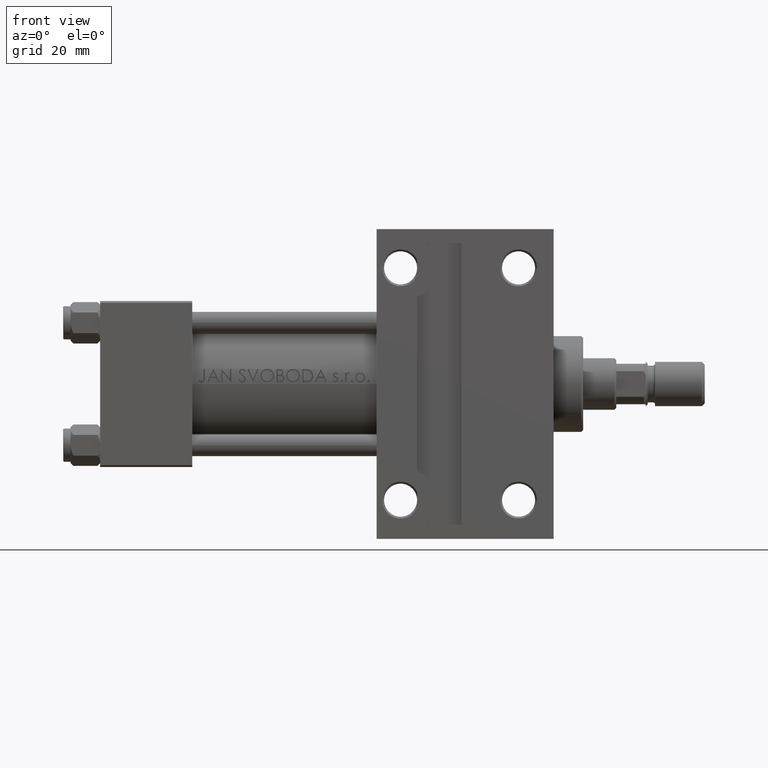
[diagram: clean part render]
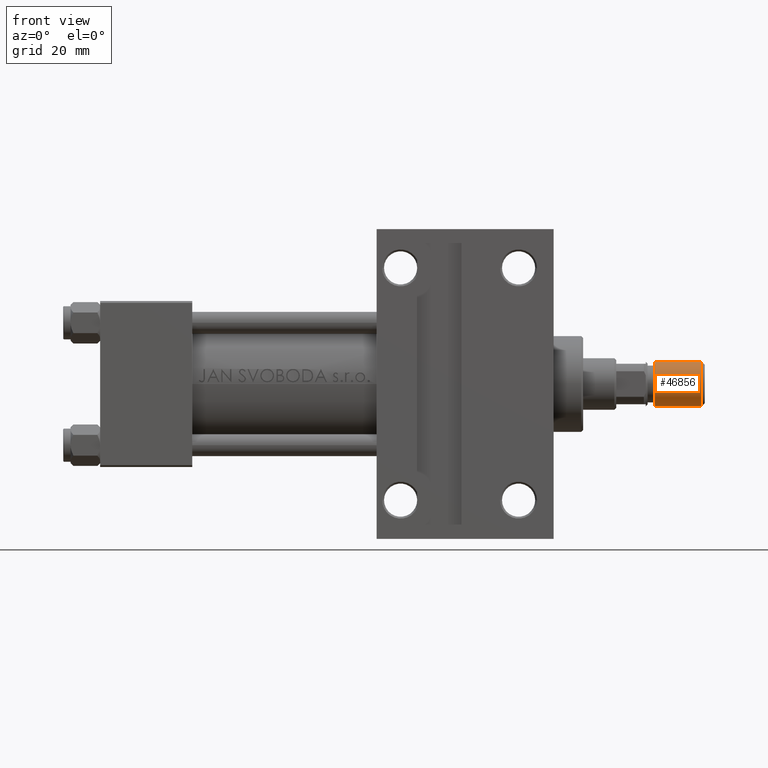
[diagram: same view with one face highlighted and labeled with its STEP entity id]
A machine part, front view. The second image highlights one B-rep face of the part: STEP entity #46856.
In plain terms, the highlighted cylindrical surface (edge-blend (fillet) strip) has radius 6 mm, axis along (1, -0, -0).
Its self-contained STEP definition (entity closure, byte-faithful):
#190 = DIRECTION ( 'NONE',  ( -0.000000000000000000, -0.000000000000000000, 1.000000000000000000 ) ) ;
#2602 = CARTESIAN_POINT ( 'NONE',  ( -6.000000000000000888, 0.000000000000000000, 13.50000000000000000 ) ) ;
#5103 = CARTESIAN_POINT ( 'NONE',  ( 6.000000000000000888, 7.347880794884120722E-16, 0.8000000000000055955 ) ) ;
#6242 = EDGE_CURVE ( 'NONE', #13514, #43620, #26786, .T. ) ;
#7262 = DIRECTION ( 'NONE',  ( 1.000000000000000000, 0.000000000000000000, 0.000000000000000000 ) ) ;
#7467 = CARTESIAN_POINT ( 'NONE',  ( -6.000000000000000888, 0.000000000000000000, 0.8000000000000055955 ) ) ;
#8733 = DIRECTION ( 'NONE',  ( -1.000000000000000000, 0.000000000000000000, 0.000000000000000000 ) ) ;
#9083 = DIRECTION ( 'NONE',  ( 0.000000000000000000, 0.000000000000000000, 1.000000000000000000 ) ) ;
#9682 = LINE ( 'NONE', #2602, #17124 ) ;
#10864 = CARTESIAN_POINT ( 'NONE',  ( -6.000000000000000888, 0.000000000000000000, 13.50000000000000000 ) ) ;
#13514 = VERTEX_POINT ( 'NONE', #24034 ) ;
#13590 = DIRECTION ( 'NONE',  ( -0.000000000000000000, -0.000000000000000000, -1.000000000000000000 ) ) ;
#13944 = ORIENTED_EDGE ( 'NONE', *, *, #40775, .T. ) ;
#15184 = ORIENTED_EDGE ( 'NONE', *, *, #40638, .T. ) ;
#16265 = DIRECTION ( 'NONE',  ( -0.000000000000000000, -0.000000000000000000, -1.000000000000000000 ) ) ;
#16328 = CIRCLE ( 'NONE', #43580, 6.000000000000000888 ) ;
#16748 = CARTESIAN_POINT ( 'NONE',  ( 0.000000000000000000, 0.000000000000000000, 13.50000000000000000 ) ) ;
#17124 = VECTOR ( 'NONE', #39875, 1000.000000000000000 ) ;
#18507 = VERTEX_POINT ( 'NONE', #7467 ) ;
#19935 = FACE_OUTER_BOUND ( 'NONE', #44026, .T. ) ;
#20532 = DIRECTION ( 'NONE',  ( 1.000000000000000000, 0.000000000000000000, 0.000000000000000000 ) ) ;
#23003 = VECTOR ( 'NONE', #16265, 1000.000000000000000 ) ;
#24034 = CARTESIAN_POINT ( 'NONE',  ( 6.000000000000000888, 7.347880794884120722E-16, 13.50000000000000000 ) ) ;
#24170 = CIRCLE ( 'NONE', #30384, 6.000000000000000888 ) ;
#26786 = LINE ( 'NONE', #37992, #23003 ) ;
#29059 = ORIENTED_EDGE ( 'NONE', *, *, #42190, .F. ) ;
#30384 = AXIS2_PLACEMENT_3D ( 'NONE', #39302, #9083, #20532 ) ;
#31854 = CYLINDRICAL_SURFACE ( 'NONE', #36004, 6.000000000000000888 ) ;
#33086 = CARTESIAN_POINT ( 'NONE',  ( 0.000000000000000000, 0.000000000000000000, 0.8000000000000055955 ) ) ;
#35990 = ORIENTED_EDGE ( 'NONE', *, *, #6242, .F. ) ;
#36004 = AXIS2_PLACEMENT_3D ( 'NONE', #16748, #13590, #8733 ) ;
#37992 = CARTESIAN_POINT ( 'NONE',  ( 6.000000000000000888, 7.347880794884120722E-16, 13.50000000000000000 ) ) ;
#39302 = CARTESIAN_POINT ( 'NONE',  ( 0.000000000000000000, 0.000000000000000000, 13.50000000000000000 ) ) ;
#39875 = DIRECTION ( 'NONE',  ( -0.000000000000000000, -0.000000000000000000, -1.000000000000000000 ) ) ;
#40638 = EDGE_CURVE ( 'NONE', #18507, #43620, #16328, .T. ) ;
#40775 = EDGE_CURVE ( 'NONE', #42861, #18507, #9682, .T. ) ;
#42190 = EDGE_CURVE ( 'NONE', #42861, #13514, #24170, .T. ) ;
#42861 = VERTEX_POINT ( 'NONE', #10864 ) ;
#43580 = AXIS2_PLACEMENT_3D ( 'NONE', #33086, #190, #7262 ) ;
#43620 = VERTEX_POINT ( 'NONE', #5103 ) ;
#44026 = EDGE_LOOP ( 'NONE', ( #35990, #29059, #13944, #15184 ) ) ;
#46856 = ADVANCED_FACE ( 'NONE', ( #19935 ), #31854, .T. ) ;